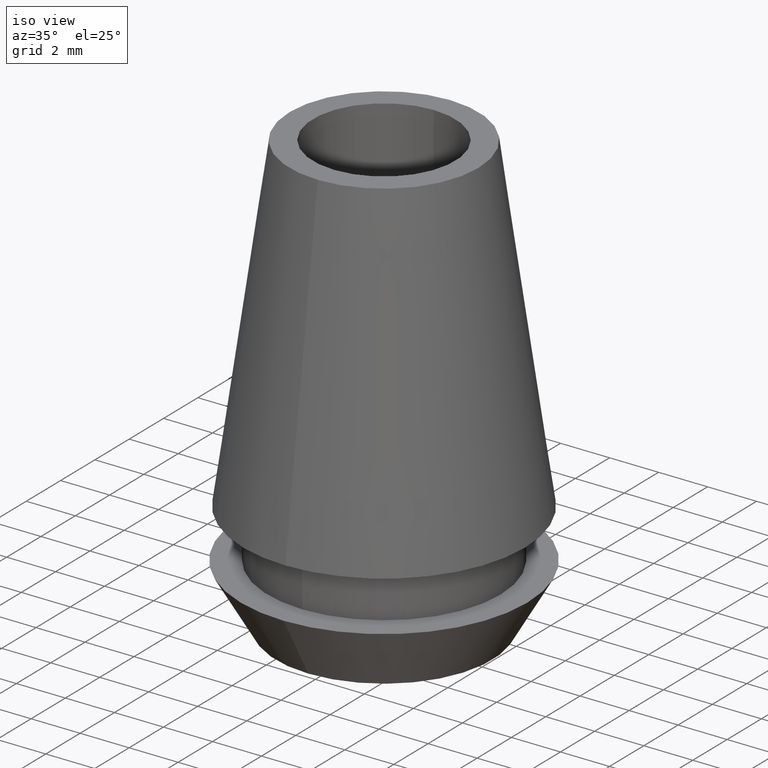
[diagram: clean part render]
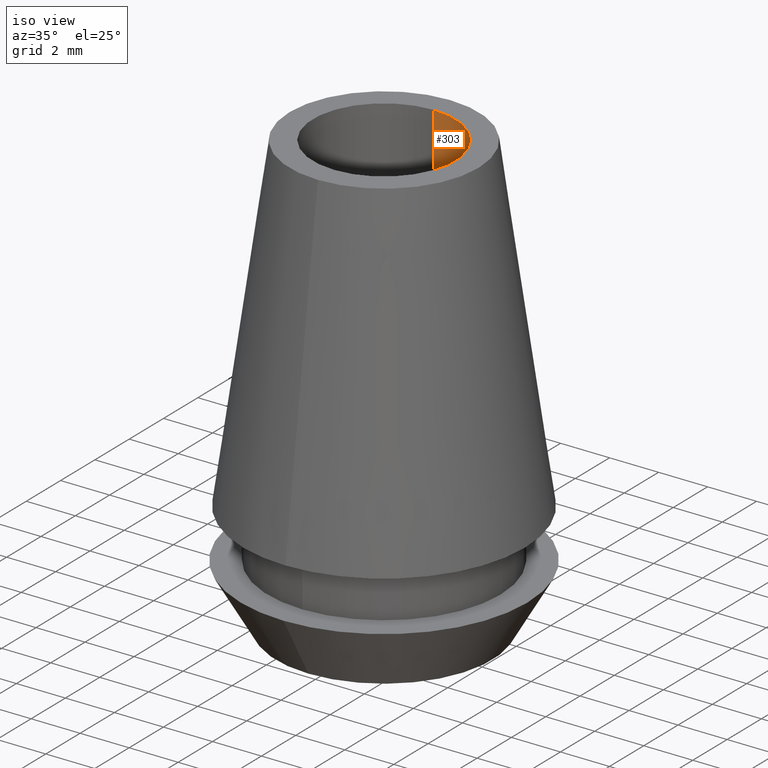
[diagram: same view with one face highlighted and labeled with its STEP entity id]
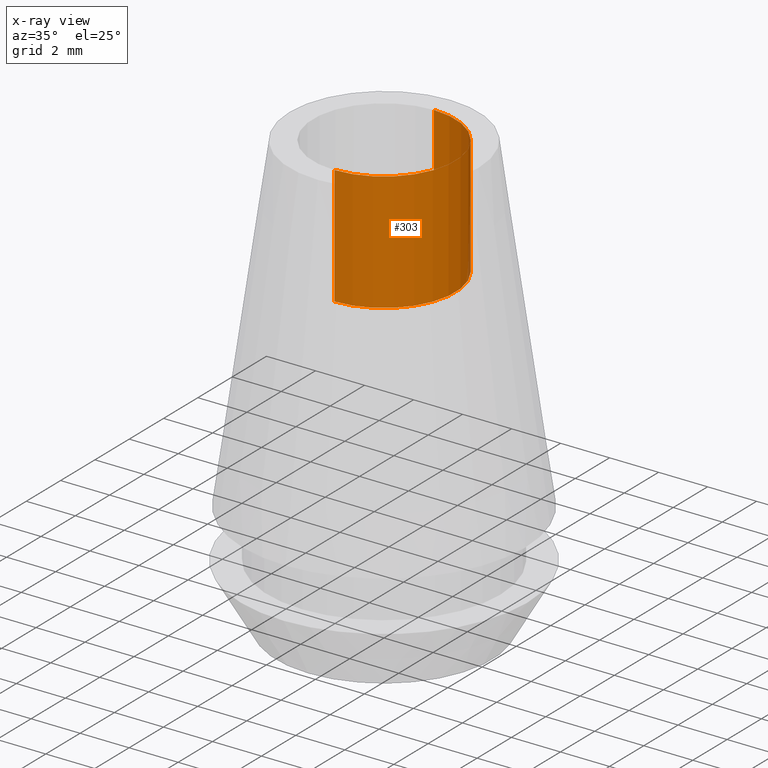
[diagram: x-ray of the same camera — body ghosted, the highlighted face saturated]
A machine part, iso view. The second image highlights one B-rep face of the part: STEP entity #303.
The next image is the same camera in x-ray: the body ghosted, the highlighted face saturated — about 1% of this face is hidden behind the body in this view.
In plain terms, the highlighted cylindrical surface (partial cylindrical patch) has radius 2.9 mm, axis along (0, 0, -1).
Its self-contained STEP definition (entity closure, byte-faithful):
#17=DIRECTION('',(0.E0,0.E0,1.E0));
#18=VECTOR('',#17,4.85E0);
#19=CARTESIAN_POINT('',(0.E0,2.9E0,-4.85E0));
#20=LINE('',#19,#18);
#25=DIRECTION('',(0.E0,0.E0,1.E0));
#26=VECTOR('',#25,4.85E0);
#27=CARTESIAN_POINT('',(0.E0,-2.9E0,-4.85E0));
#28=LINE('',#27,#26);
#40=CARTESIAN_POINT('',(0.E0,1.378952295840E-14,-4.85E0));
#41=DIRECTION('',(0.E0,0.E0,-1.E0));
#42=DIRECTION('',(0.E0,1.E0,0.E0));
#43=AXIS2_PLACEMENT_3D('',#40,#41,#42);
#232=CARTESIAN_POINT('',(0.E0,1.378952295840E-14,0.E0));
#233=DIRECTION('',(0.E0,0.E0,1.E0));
#234=DIRECTION('',(0.E0,-1.E0,0.E0));
#235=AXIS2_PLACEMENT_3D('',#232,#233,#234);
#248=CARTESIAN_POINT('',(0.E0,2.9E0,-4.85E0));
#249=CARTESIAN_POINT('',(0.E0,2.9E0,0.E0));
#250=VERTEX_POINT('',#248);
#251=VERTEX_POINT('',#249);
#252=CARTESIAN_POINT('',(0.E0,-2.9E0,0.E0));
#253=VERTEX_POINT('',#252);
#254=CARTESIAN_POINT('',(0.E0,-2.9E0,-4.85E0));
#255=VERTEX_POINT('',#254);
#288=CARTESIAN_POINT('',(0.E0,1.378952295840E-14,9.E-1));
#289=DIRECTION('',(0.E0,0.E0,-1.E0));
#290=DIRECTION('',(0.E0,-1.E0,0.E0));
#291=AXIS2_PLACEMENT_3D('',#288,#289,#290);
#292=CYLINDRICAL_SURFACE('',#291,2.9E0);
#294=ORIENTED_EDGE('',*,*,#293,.T.);
#296=ORIENTED_EDGE('',*,*,#295,.F.);
#298=ORIENTED_EDGE('',*,*,#297,.F.);
#300=ORIENTED_EDGE('',*,*,#299,.F.);
#301=EDGE_LOOP('',(#294,#296,#298,#300));
#302=FACE_OUTER_BOUND('',#301,.F.);
#44=CIRCLE('',#43,2.9E0);
#236=CIRCLE('',#235,2.9E0);
#293=EDGE_CURVE('',#250,#251,#20,.T.);
#295=EDGE_CURVE('',#253,#251,#236,.T.);
#297=EDGE_CURVE('',#255,#253,#28,.T.);
#299=EDGE_CURVE('',#250,#255,#44,.T.);
#303=ADVANCED_FACE('',(#302),#292,.F.);